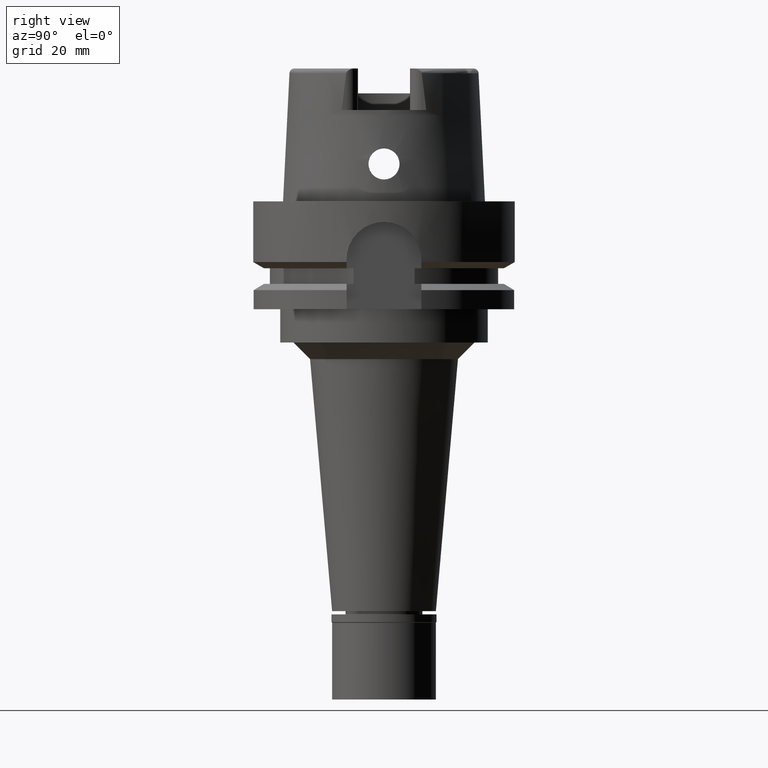
[diagram: clean part render]
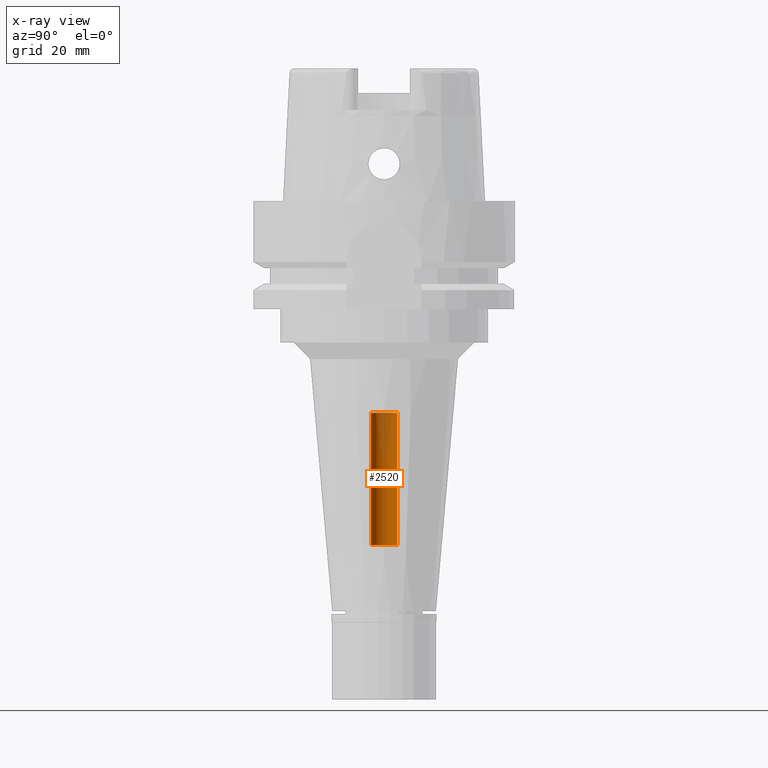
[diagram: x-ray — body ghosted, one internal face saturated and labeled with its STEP entity id]
A machine part, right view, then the same camera in x-ray: the body is ghosted and one INTERNAL B-rep face — a face not visible from any outside direction — is saturated and labeled: STEP entity #2520.
In plain terms, the highlighted cylindrical surface (edge-blend (fillet) strip) has radius 3.2 mm, axis along (0, 0, 1).
Its self-contained STEP definition (entity closure, byte-faithful):
#246 = VERTEX_POINT ( 'NONE', #5100 ) ;
#322 = DIRECTION ( 'NONE',  ( 0.0000000000000000000, 0.0000000000000000000, 1.000000000000000000 ) ) ;
#406 = CARTESIAN_POINT ( 'NONE',  ( 0.0000000000000000000, 3.200000000000000178, -82.79999999999999716 ) ) ;
#410 = CIRCLE ( 'NONE', #1204, 3.200000000000000178 ) ;
#474 = CARTESIAN_POINT ( 'NONE',  ( 0.0000000000000000000, 0.0000000000000000000, -82.79999999999999716 ) ) ;
#838 = CYLINDRICAL_SURFACE ( 'NONE', #3632, 3.200000000000000178 ) ;
#852 = ORIENTED_EDGE ( 'NONE', *, *, #4021, .T. ) ;
#876 = CARTESIAN_POINT ( 'NONE',  ( 0.0000000000000000000, 3.200000000000000178, -82.79999999999999716 ) ) ;
#1146 = VERTEX_POINT ( 'NONE', #2059 ) ;
#1204 = AXIS2_PLACEMENT_3D ( 'NONE', #4960, #322, #5040 ) ;
#1249 = CARTESIAN_POINT ( 'NONE',  ( 0.0000000000000000000, 0.0000000000000000000, 0.0000000000000000000 ) ) ;
#1327 = EDGE_LOOP ( 'NONE', ( #852, #4585, #3694, #2824 ) ) ;
#1764 = FACE_OUTER_BOUND ( 'NONE', #1327, .T. ) ;
#1788 = DIRECTION ( 'NONE',  ( 0.0000000000000000000, -1.000000000000000000, 0.0000000000000000000 ) ) ;
#2059 = CARTESIAN_POINT ( 'NONE',  ( 0.0000000000000000000, 3.200000000000000178, -50.95000000000000284 ) ) ;
#2169 = EDGE_CURVE ( 'NONE', #2223, #1146, #4657, .T. ) ;
#2223 = VERTEX_POINT ( 'NONE', #406 ) ;
#2520 = ADVANCED_FACE ( 'NONE', ( #1764 ), #838, .F. ) ;
#2824 = ORIENTED_EDGE ( 'NONE', *, *, #2169, .T. ) ;
#2911 = DIRECTION ( 'NONE',  ( 0.0000000000000000000, 1.000000000000000000, 0.0000000000000000000 ) ) ;
#3283 = DIRECTION ( 'NONE',  ( 0.0000000000000000000, 0.0000000000000000000, 1.000000000000000000 ) ) ;
#3438 = DIRECTION ( 'NONE',  ( 0.0000000000000000000, 0.0000000000000000000, 1.000000000000000000 ) ) ;
#3632 = AXIS2_PLACEMENT_3D ( 'NONE', #1249, #3438, #2911 ) ;
#3670 = CARTESIAN_POINT ( 'NONE',  ( 0.0000000000000000000, -3.200000000000000178, -50.95000000000000284 ) ) ;
#3673 = LINE ( 'NONE', #5006, #5352 ) ;
#3694 = ORIENTED_EDGE ( 'NONE', *, *, #5037, .T. ) ;
#3747 = AXIS2_PLACEMENT_3D ( 'NONE', #474, #4722, #1788 ) ;
#4021 = EDGE_CURVE ( 'NONE', #1146, #5463, #410, .T. ) ;
#4094 = DIRECTION ( 'NONE',  ( 0.0000000000000000000, 0.0000000000000000000, 1.000000000000000000 ) ) ;
#4515 = VECTOR ( 'NONE', #3283, 1000.000000000000000 ) ;
#4585 = ORIENTED_EDGE ( 'NONE', *, *, #4820, .F. ) ;
#4633 = CIRCLE ( 'NONE', #3747, 3.200000000000000178 ) ;
#4657 = LINE ( 'NONE', #876, #4515 ) ;
#4722 = DIRECTION ( 'NONE',  ( 0.0000000000000000000, 0.0000000000000000000, -1.000000000000000000 ) ) ;
#4820 = EDGE_CURVE ( 'NONE', #246, #5463, #3673, .T. ) ;
#4960 = CARTESIAN_POINT ( 'NONE',  ( 0.0000000000000000000, 0.0000000000000000000, -50.95000000000000284 ) ) ;
#5006 = CARTESIAN_POINT ( 'NONE',  ( 0.0000000000000000000, -3.200000000000000178, -82.79999999999999716 ) ) ;
#5037 = EDGE_CURVE ( 'NONE', #246, #2223, #4633, .T. ) ;
#5040 = DIRECTION ( 'NONE',  ( 0.0000000000000000000, 1.000000000000000000, 0.0000000000000000000 ) ) ;
#5100 = CARTESIAN_POINT ( 'NONE',  ( 0.0000000000000000000, -3.200000000000000178, -82.79999999999999716 ) ) ;
#5352 = VECTOR ( 'NONE', #4094, 1000.000000000000000 ) ;
#5463 = VERTEX_POINT ( 'NONE', #3670 ) ;